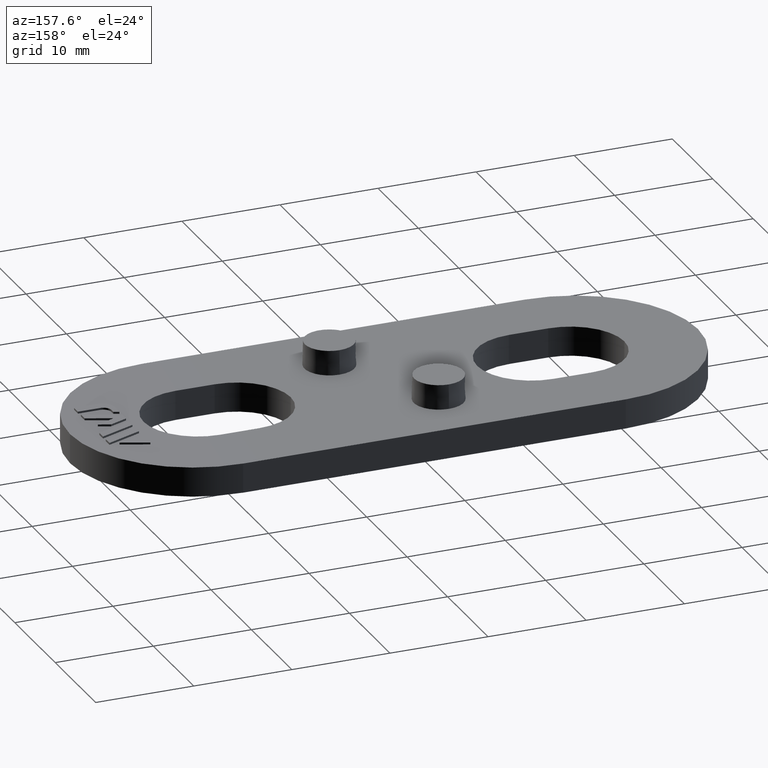
[diagram: clean part render]
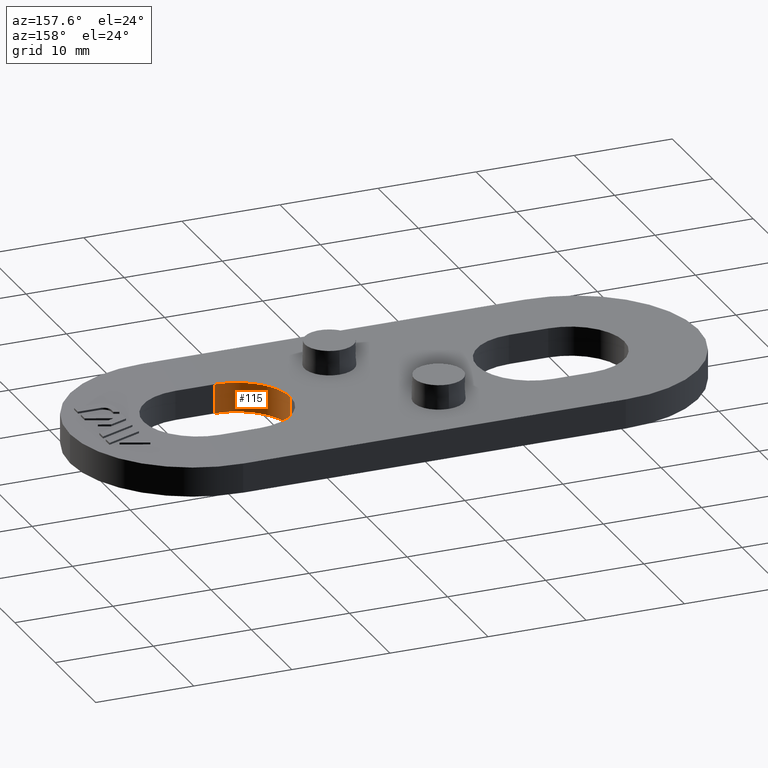
[diagram: same view with one face highlighted and labeled with its STEP entity id]
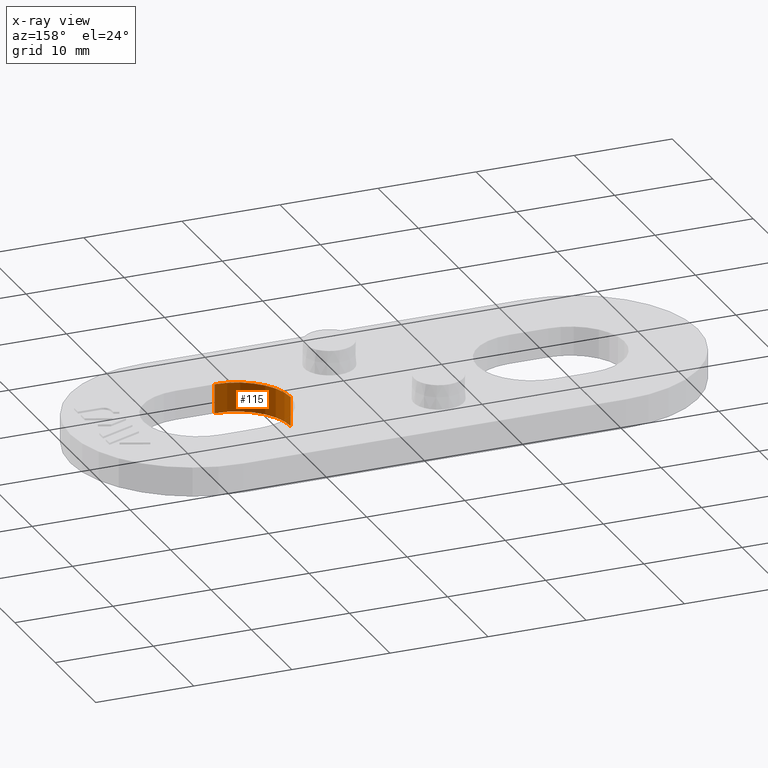
[diagram: x-ray of the same camera — body ghosted, the highlighted face saturated]
A machine part, auxiliary view. The second image highlights one B-rep face of the part: STEP entity #115.
The next image is the same camera in x-ray: the body ghosted, the highlighted face saturated — about 0% of this face is hidden behind the body in this view.
In plain terms, the highlighted cylindrical surface (partial cylindrical patch) has radius 5.5 mm, axis along (0, -0, -1).
Its self-contained STEP definition (entity closure, byte-faithful):
#115 = ADVANCED_FACE( '', ( #242 ), #243, .F. );
#242 = FACE_OUTER_BOUND( '', #399, .T. );
#243 = CYLINDRICAL_SURFACE( '', #400, 5.50000000000000 );
#399 = EDGE_LOOP( '', ( #809, #810, #811, #812 ) );
#400 = AXIS2_PLACEMENT_3D( '', #813, #814, #815 );
#809 = ORIENTED_EDGE( '', *, *, #1039, .T. );
#810 = ORIENTED_EDGE( '', *, *, #1163, .T. );
#811 = ORIENTED_EDGE( '', *, *, #1112, .T. );
#812 = ORIENTED_EDGE( '', *, *, #1162, .F. );
#813 = CARTESIAN_POINT( '', ( 15.0000000000000, 0.000000000000000, -1.00000000042774E-005 ) );
#814 = DIRECTION( '', ( 0.000000000000000, -6.12303176911189E-017, -1.00000000000000 ) );
#815 = DIRECTION( '', ( -5.78241158658935E-017, 1.00000000000000, -6.12303176911189E-017 ) );
#1039 = EDGE_CURVE( '', #1227, #1225, #1228, .F. );
#1112 = EDGE_CURVE( '', #1369, #1367, #1370, .T. );
#1162 = EDGE_CURVE( '', #1227, #1367, #1440, .T. );
#1163 = EDGE_CURVE( '', #1225, #1369, #1441, .T. );
#1225 = VERTEX_POINT( '', #1530 );
#1227 = VERTEX_POINT( '', #1532 );
#1228 = CIRCLE( '', #1533, 5.50000000000000 );
#1367 = VERTEX_POINT( '', #1719 );
#1369 = VERTEX_POINT( '', #1722 );
#1370 = CIRCLE( '', #1723, 5.50000000000000 );
#1440 = LINE( '', #1838, #1839 );
#1441 = LINE( '', #1840, #1841 );
#1530 = CARTESIAN_POINT( '', ( 9.50000000000000, 0.000000000000000, -2.60208521396521E-015 ) );
#1532 = CARTESIAN_POINT( '', ( 15.0000000000000, -5.49999999999999, -2.60208521396521E-015 ) );
#1533 = AXIS2_PLACEMENT_3D( '', #1963, #1964, #1965 );
#1719 = CARTESIAN_POINT( '', ( 15.0000000000000, -5.49999999999999, 3.00000299994030 ) );
#1722 = CARTESIAN_POINT( '', ( 9.50000000000000, 0.000000000000000, 3.00000299994030 ) );
#1723 = AXIS2_PLACEMENT_3D( '', #2086, #2087, #2088 );
#1838 = CARTESIAN_POINT( '', ( 15.0000000000000, -5.49999999999999, -1.00000000042774E-005 ) );
#1839 = VECTOR( '', #2146, 1000.00000000000 );
#1840 = CARTESIAN_POINT( '', ( 9.50000000000000, 0.000000000000000, -1.00000000042774E-005 ) );
#1841 = VECTOR( '', #2147, 1000.00000000000 );
#1963 = CARTESIAN_POINT( '', ( 15.0000000000000, 0.000000000000000, -2.60208521396521E-015 ) );
#1964 = DIRECTION( '', ( 0.000000000000000, 6.12303176911189E-017, 1.00000000000000 ) );
#1965 = DIRECTION( '', ( 0.000000000000000, -1.00000000000000, 6.12303176911189E-017 ) );
#2086 = CARTESIAN_POINT( '', ( 15.0000000000000, 0.000000000000000, 3.00000299994030 ) );
#2087 = DIRECTION( '', ( 0.000000000000000, 6.12303176911189E-017, 1.00000000000000 ) );
#2088 = DIRECTION( '', ( 5.78241158658935E-017, -1.00000000000000, 6.12303176911189E-017 ) );
#2146 = DIRECTION( '', ( 0.000000000000000, 6.12303176911189E-017, 1.00000000000000 ) );
#2147 = DIRECTION( '', ( 0.000000000000000, 6.12303176911189E-017, 1.00000000000000 ) );